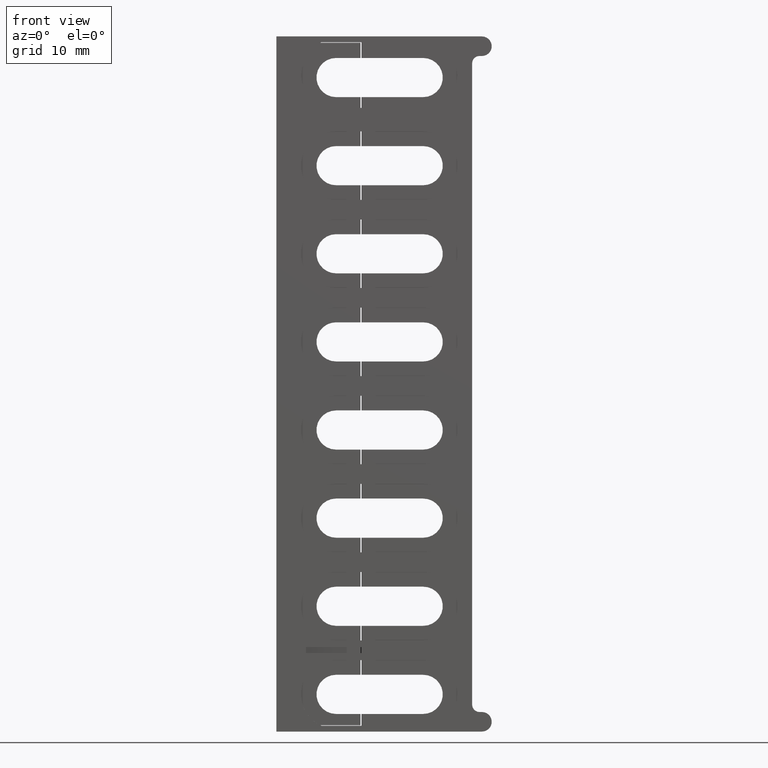
[diagram: clean part render]
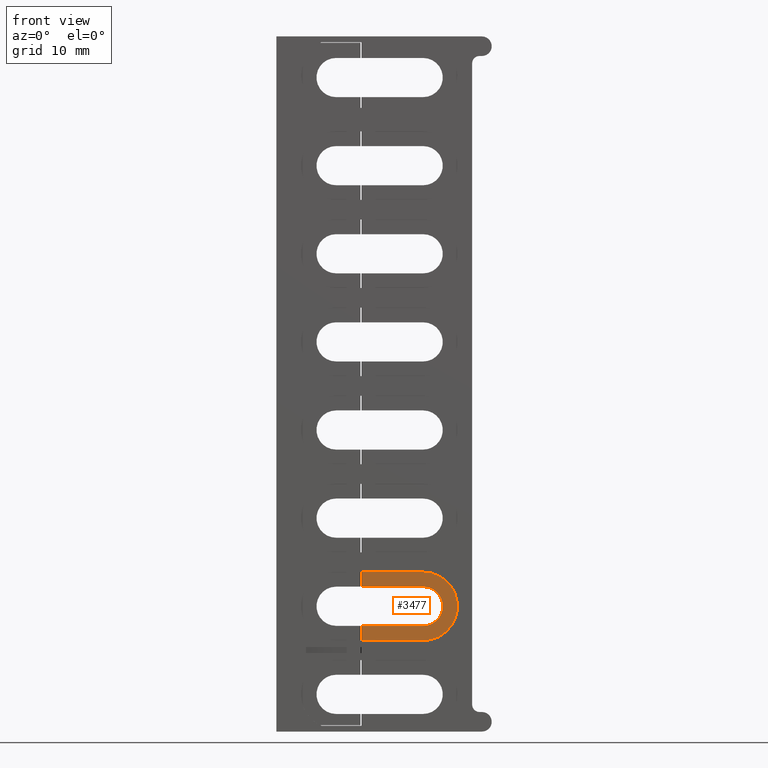
[diagram: same view with one face highlighted and labeled with its STEP entity id]
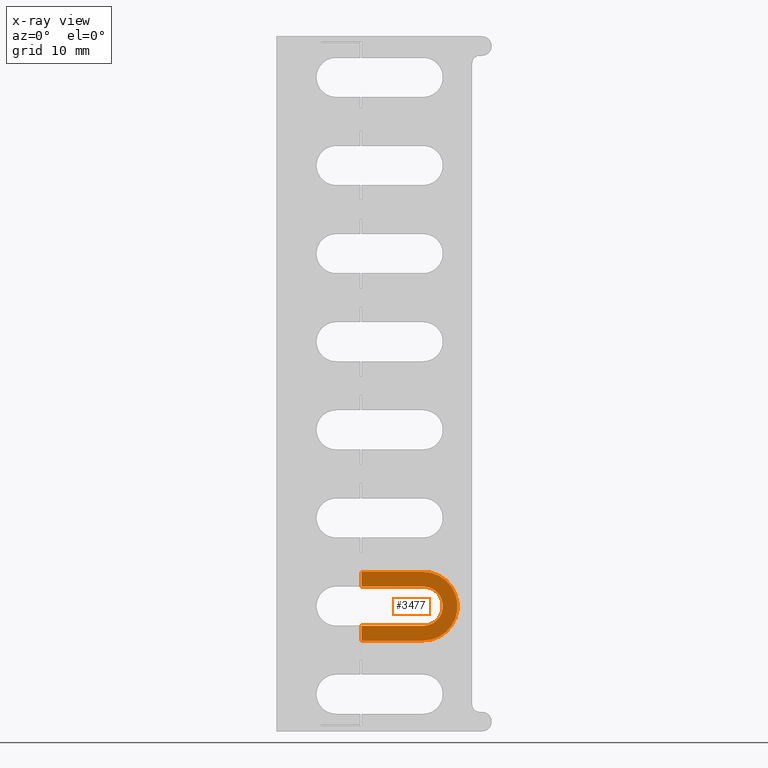
[diagram: x-ray of the same camera — body ghosted, the highlighted face saturated]
A machine part, front view. The second image highlights one B-rep face of the part: STEP entity #3477.
The next image is the same camera in x-ray: the body ghosted, the highlighted face saturated — about 0% of this face is hidden behind the body in this view.
In plain terms, the highlighted planar face has unit normal (0, -1, 0).
Its self-contained STEP definition (entity closure, byte-faithful):
#29 = CIRCLE ( 'NONE', #42, 2.000000000000000000 ) ;
#42 = AXIS2_PLACEMENT_3D ( 'NONE', #8241, #8232, #8222 ) ;
#153 = CIRCLE ( 'NONE', #166, 3.500000000000001300 ) ;
#162 = VECTOR ( 'NONE', #8589, 1000.000000000000000 ) ;
#166 = AXIS2_PLACEMENT_3D ( 'NONE', #8538, #8518, #8539 ) ;
#237 = VECTOR ( 'NONE', #8744, 1000.000000000000000 ) ;
#456 = AXIS2_PLACEMENT_3D ( 'NONE', #4388, #4416, #4406 ) ;
#568 = VECTOR ( 'NONE', #4973, 1000.000000000000000 ) ;
#689 = VECTOR ( 'NONE', #7876, 1000.000000000000000 ) ;
#751 = VECTOR ( 'NONE', #8049, 1000.000000000000000 ) ;
#803 = VECTOR ( 'NONE', #8109, 1000.000000000000000 ) ;
#868 = VERTEX_POINT ( 'NONE', #6712 ) ;
#874 = VERTEX_POINT ( 'NONE', #6673 ) ;
#905 = VERTEX_POINT ( 'NONE', #6725 ) ;
#943 = VERTEX_POINT ( 'NONE', #6740 ) ;
#954 = VERTEX_POINT ( 'NONE', #6762 ) ;
#980 = VERTEX_POINT ( 'NONE', #6807 ) ;
#1120 = VERTEX_POINT ( 'NONE', #6895 ) ;
#1883 = ORIENTED_EDGE ( 'NONE', *, *, #3824, .T. ) ;
#1887 = ORIENTED_EDGE ( 'NONE', *, *, #3596, .F. ) ;
#1907 = ORIENTED_EDGE ( 'NONE', *, *, #3754, .T. ) ;
#1913 = ORIENTED_EDGE ( 'NONE', *, *, #3702, .F. ) ;
#1943 = ORIENTED_EDGE ( 'NONE', *, *, #3929, .F. ) ;
#1948 = ORIENTED_EDGE ( 'NONE', *, *, #3781, .T. ) ;
#1951 = ORIENTED_EDGE ( 'NONE', *, *, #3916, .T. ) ;
#1958 = ORIENTED_EDGE ( 'NONE', *, *, #3992, .F. ) ;
#2374 = VERTEX_POINT ( 'NONE', #6982 ) ;
#3477 = ADVANCED_FACE ( 'NONE', ( #4429 ), #4415, .T. ) ;
#3596 = EDGE_CURVE ( 'NONE', #868, #2374, #4900, .T. ) ;
#3702 = EDGE_CURVE ( 'NONE', #874, #954, #7900, .T. ) ;
#3754 = EDGE_CURVE ( 'NONE', #905, #954, #8072, .T. ) ;
#3781 = EDGE_CURVE ( 'NONE', #868, #943, #8104, .T. ) ;
#3824 = EDGE_CURVE ( 'NONE', #943, #905, #29, .T. ) ;
#3916 = EDGE_CURVE ( 'NONE', #980, #1120, #153, .T. ) ;
#3929 = EDGE_CURVE ( 'NONE', #980, #874, #8560, .T. ) ;
#3992 = EDGE_CURVE ( 'NONE', #2374, #1120, #8765, .T. ) ;
#4388 = CARTESIAN_POINT ( 'NONE',  ( 479.5850360910420100, 144.0878730676890000, 34.60000000000000100 ) ) ;
#4406 = DIRECTION ( 'NONE',  ( 0.0000000000000000000, -2.733577826868160200E-020, -1.000000000000000000 ) ) ;
#4415 = PLANE ( 'NONE',  #456 ) ;
#4416 = DIRECTION ( 'NONE',  ( 2.530253133731424900E-033, -1.000000000000000000, 2.733577826868160200E-020 ) ) ;
#4429 = FACE_OUTER_BOUND ( 'NONE', #6652, .T. ) ;
#4900 = LINE ( 'NONE', #4995, #568 ) ;
#4973 = DIRECTION ( 'NONE',  ( -3.492165866658390800E-015, 0.0000000000000000000, 1.000000000000000000 ) ) ;
#4995 = CARTESIAN_POINT ( 'NONE',  ( 452.8252094327941700, 144.0878730676890000, 40.39783776548824800 ) ) ;
#6652 = EDGE_LOOP ( 'NONE', ( #1907, #1913, #1943, #1951, #1958, #1887, #1948, #1883 ) ) ;
#6673 = CARTESIAN_POINT ( 'NONE',  ( 452.8252094327942200, 144.0878730676890000, 9.899999999999984400 ) ) ;
#6712 = CARTESIAN_POINT ( 'NONE',  ( 452.8252094327941700, 144.0878730676890000, 15.40000000000000600 ) ) ;
#6725 = CARTESIAN_POINT ( 'NONE',  ( 459.1252094327940100, 144.0878730676890000, 11.40000000000000000 ) ) ;
#6740 = CARTESIAN_POINT ( 'NONE',  ( 459.1252094327940100, 144.0878730676890000, 15.40000000000000200 ) ) ;
#6762 = CARTESIAN_POINT ( 'NONE',  ( 452.8252094327941700, 144.0878730676890000, 11.39999999999999100 ) ) ;
#6807 = CARTESIAN_POINT ( 'NONE',  ( 459.1252094327940100, 144.0878730676890000, 9.900000000000000400 ) ) ;
#6895 = CARTESIAN_POINT ( 'NONE',  ( 459.1252094327940100, 144.0878730676890000, 16.90000000000001600 ) ) ;
#6982 = CARTESIAN_POINT ( 'NONE',  ( 452.8252094327941700, 144.0878730676890000, 16.90000000000000600 ) ) ;
#7876 = DIRECTION ( 'NONE',  ( -3.492165866658390800E-015, 0.0000000000000000000, 1.000000000000000000 ) ) ;
#7900 = LINE ( 'NONE', #7905, #689 ) ;
#7905 = CARTESIAN_POINT ( 'NONE',  ( 452.8252094327941700, 144.0878730676890000, 40.39783776548824800 ) ) ;
#8049 = DIRECTION ( 'NONE',  ( -1.000000000000000000, -2.530253133731424900E-033, 6.916643862731900400E-053 ) ) ;
#8050 = CARTESIAN_POINT ( 'NONE',  ( 479.5850360910420100, 144.0878730676890000, 11.40000000000000000 ) ) ;
#8072 = LINE ( 'NONE', #8050, #751 ) ;
#8104 = LINE ( 'NONE', #8133, #803 ) ;
#8109 = DIRECTION ( 'NONE',  ( 1.000000000000000000, 2.530253133731424900E-033, -6.916643862731900400E-053 ) ) ;
#8133 = CARTESIAN_POINT ( 'NONE',  ( 479.5850360910420100, 144.0878730676890000, 15.40000000000000400 ) ) ;
#8222 = DIRECTION ( 'NONE',  ( 0.0000000000000000000, 0.0000000000000000000, 1.000000000000000000 ) ) ;
#8232 = DIRECTION ( 'NONE',  ( -2.530253133731424900E-033, 1.000000000000000000, -2.733577826868160200E-020 ) ) ;
#8241 = CARTESIAN_POINT ( 'NONE',  ( 459.1252094327940100, 144.0878730676890000, 13.40000000000000000 ) ) ;
#8518 = DIRECTION ( 'NONE',  ( 2.530253133731424900E-033, -1.000000000000000000, 2.733577826868160200E-020 ) ) ;
#8538 = CARTESIAN_POINT ( 'NONE',  ( 459.1252094327940100, 144.0878730676890000, 13.40000000000000000 ) ) ;
#8539 = DIRECTION ( 'NONE',  ( 0.0000000000000000000, 0.0000000000000000000, 1.000000000000000000 ) ) ;
#8560 = LINE ( 'NONE', #8579, #162 ) ;
#8579 = CARTESIAN_POINT ( 'NONE',  ( 459.1252094327940100, 144.0878730676890000, 9.900000000000000400 ) ) ;
#8589 = DIRECTION ( 'NONE',  ( -1.000000000000000000, -0.0000000000000000000, -3.299418813772075000E-015 ) ) ;
#8744 = DIRECTION ( 'NONE',  ( 1.000000000000000000, -0.0000000000000000000, 3.492165866658340700E-015 ) ) ;
#8765 = LINE ( 'NONE', #8766, #237 ) ;
#8766 = CARTESIAN_POINT ( 'NONE',  ( 450.1252094327940700, 144.0878730676890000, 16.89999999999999900 ) ) ;